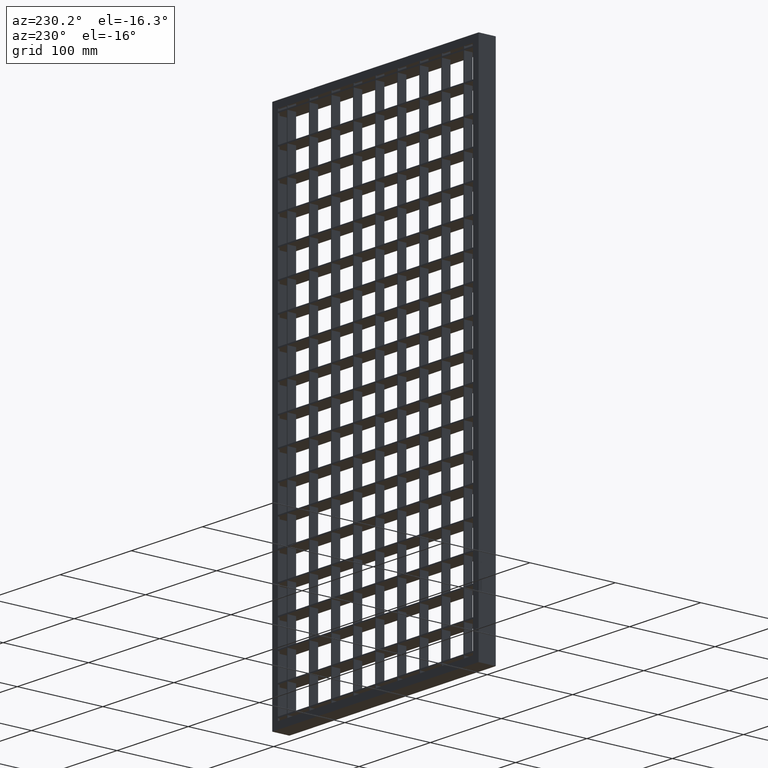
[diagram: clean part render]
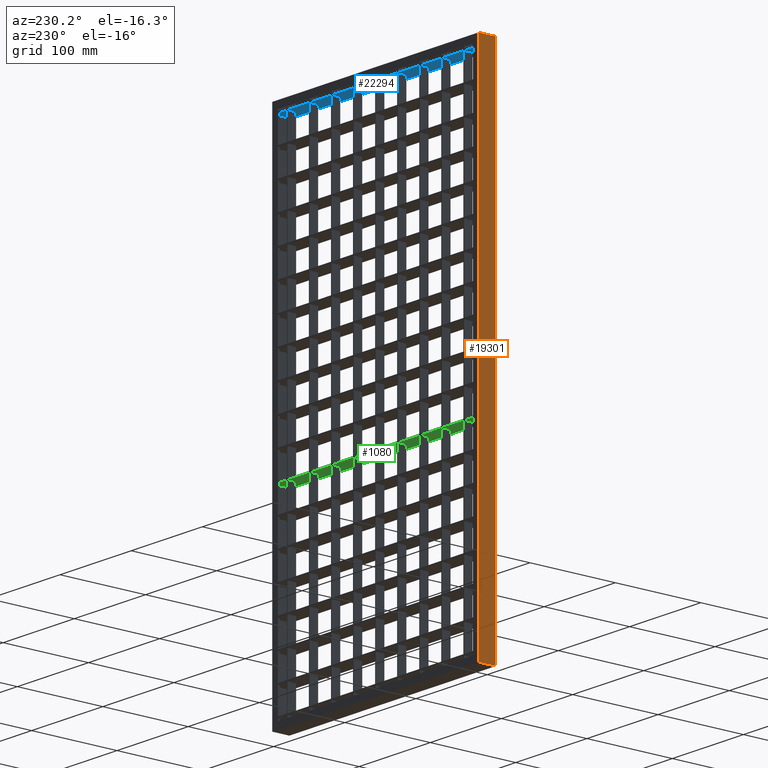
[diagram: same view with three faces highlighted in distinct colors, each labeled with its STEP entity id]
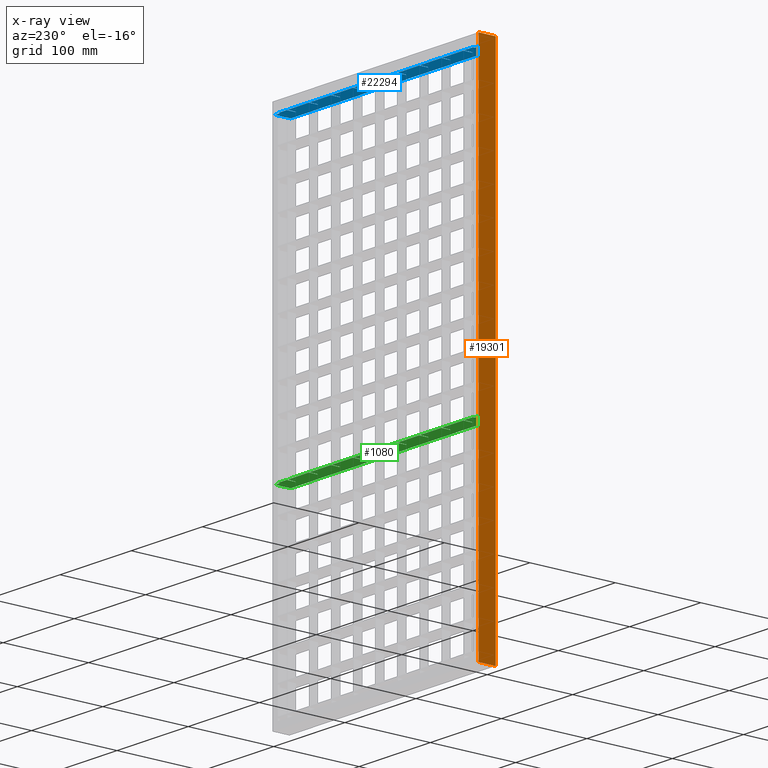
[diagram: x-ray of the same camera — body ghosted, the three highlighted faces saturated]
A machine part, auxiliary view with three faces highlighted in distinct colors.
The next image is the same camera in x-ray (body ghosted, the three faces saturated) — at least one of them is partly hidden behind the body in this view.
Their STEP definitions:

[orange] entity #19301 — the highlighted planar face has unit normal (-1, -0, 0).
#271 = VECTOR ( 'NONE', #11620, 1000.000000000000000 ) ;
#819 = ORIENTED_EDGE ( 'NONE', *, *, #8721, .T. ) ;
#1291 = CARTESIAN_POINT ( 'NONE',  ( -3.061616997868382300E-015, 10.00000000000000000, -633.0813184570758900 ) ) ;
#1912 = DIRECTION ( 'NONE',  ( 3.061616997868382600E-016, -1.000000000000000000, 0.0000000000000000000 ) ) ;
#2536 = VERTEX_POINT ( 'NONE', #11856 ) ;
#2788 = EDGE_CURVE ( 'NONE', #24667, #27620, #11308, .T. ) ;
#2845 = EDGE_LOOP ( 'NONE', ( #2885, #12816, #28418, #819 ) ) ;
#2885 = ORIENTED_EDGE ( 'NONE', *, *, #2788, .T. ) ;
#3832 = CARTESIAN_POINT ( 'NONE',  ( 3.061616997868383000E-015, -10.00000000000000000, -590.0000000000000000 ) ) ;
#4562 = CARTESIAN_POINT ( 'NONE',  ( 1.530808498934191500E-015, -10.00000000000000000, -1.665334536937734800E-013 ) ) ;
#4758 = CARTESIAN_POINT ( 'NONE',  ( -1.110223024625157600E-013, 10.00000000000000000, 1.089981928716811900E-013 ) ) ;
#4855 = CARTESIAN_POINT ( 'NONE',  ( -1.020538999289460800E-015, 3.333333333333333900, 0.0000000000000000000 ) ) ;
#5433 = B_SPLINE_CURVE_WITH_KNOTS ( 'NONE', 3,
 ( #4562, #15451, #4855, #4758 ),
 .UNSPECIFIED., .F., .F.,
 ( 4, 4 ),
 ( 0.0000000000000000000, 1.000000000000000000 ),
 .UNSPECIFIED. ) ;
#6564 = CARTESIAN_POINT ( 'NONE',  ( -3.061616997868382300E-015, 10.00000000000000000, -633.0813184570758900 ) ) ;
#6766 = PLANE ( 'NONE',  #21550 ) ;
#7939 = DIRECTION ( 'NONE',  ( -0.0000000000000000000, -0.0000000000000000000, 1.000000000000000000 ) ) ;
#8332 = CARTESIAN_POINT ( 'NONE',  ( 3.061616997868383000E-015, -10.00000000000000000, -633.0813184570758900 ) ) ;
#8721 = EDGE_CURVE ( 'NONE', #15656, #24667, #19824, .T. ) ;
#8939 = VECTOR ( 'NONE', #12390, 1000.000000000000000 ) ;
#9090 = CARTESIAN_POINT ( 'NONE',  ( -3.061616997868386200E-015, 10.00000000000001400, -590.0000000000000000 ) ) ;
#11308 = LINE ( 'NONE', #8332, #26262 ) ;
#11620 = DIRECTION ( 'NONE',  ( 3.061616997868382600E-016, -1.000000000000000000, 3.061616997868382600E-016 ) ) ;
#11856 = CARTESIAN_POINT ( 'NONE',  ( -1.110223024625157600E-013, 10.00000000000000000, 1.089981928716811900E-013 ) ) ;
#12390 = DIRECTION ( 'NONE',  ( -0.0000000000000000000, -0.0000000000000000000, 1.000000000000000000 ) ) ;
#12816 = ORIENTED_EDGE ( 'NONE', *, *, #25262, .T. ) ;
#15451 = CARTESIAN_POINT ( 'NONE',  ( 1.020538999289461500E-015, -3.333333333333333900, 0.0000000000000000000 ) ) ;
#15656 = VERTEX_POINT ( 'NONE', #18567 ) ;
#15788 = EDGE_CURVE ( 'NONE', #15656, #2536, #15968, .T. ) ;
#15968 = LINE ( 'NONE', #1291, #8939 ) ;
#18567 = CARTESIAN_POINT ( 'NONE',  ( -3.061616997868381900E-015, 10.00000000000000000, -590.0000000000000000 ) ) ;
#19301 = ADVANCED_FACE ( 'NONE', ( #26833 ), #6766, .T. ) ;
#19824 = LINE ( 'NONE', #9090, #271 ) ;
#20136 = DIRECTION ( 'NONE',  ( -1.000000000000000000, -3.061616997868382600E-016, 0.0000000000000000000 ) ) ;
#21550 = AXIS2_PLACEMENT_3D ( 'NONE', #6564, #20136, #1912 ) ;
#24371 = CARTESIAN_POINT ( 'NONE',  ( 1.530808498934191500E-015, -10.00000000000000000, -1.665334536937734800E-013 ) ) ;
#24667 = VERTEX_POINT ( 'NONE', #3832 ) ;
#25262 = EDGE_CURVE ( 'NONE', #27620, #2536, #5433, .T. ) ;
#26262 = VECTOR ( 'NONE', #7939, 1000.000000000000000 ) ;
#26833 = FACE_OUTER_BOUND ( 'NONE', #2845, .T. ) ;
#27620 = VERTEX_POINT ( 'NONE', #24371 ) ;
#28418 = ORIENTED_EDGE ( 'NONE', *, *, #15788, .F. ) ;

[blue] entity #22294 — the highlighted planar face has unit normal (0, 0, -1).
#96 = VERTEX_POINT ( 'NONE', #26644 ) ;
#139 = CARTESIAN_POINT ( 'NONE',  ( 206.5000000000000300, 10.00000000000000000, -12.25000000000042600 ) ) ;
#226 = LINE ( 'NONE', #10266, #25825 ) ;
#425 = EDGE_CURVE ( 'NONE', #26056, #19521, #16790, .T. ) ;
#430 = ORIENTED_EDGE ( 'NONE', *, *, #2437, .F. ) ;
#474 = CARTESIAN_POINT ( 'NONE',  ( 83.50000000000001400, 10.00000000000000000, -12.25000000000042600 ) ) ;
#577 = ORIENTED_EDGE ( 'NONE', *, *, #16531, .F. ) ;
#634 = EDGE_CURVE ( 'NONE', #12858, #7299, #27153, .T. ) ;
#851 = ORIENTED_EDGE ( 'NONE', *, *, #19906, .T. ) ;
#937 = CARTESIAN_POINT ( 'NONE',  ( 145.0000000000000000, 8.000000000000001800, -12.25000000000037100 ) ) ;
#959 = ORIENTED_EDGE ( 'NONE', *, *, #23688, .F. ) ;
#1035 = LINE ( 'NONE', #20708, #15929 ) ;
#1141 = VERTEX_POINT ( 'NONE', #11451 ) ;
#1162 = LINE ( 'NONE', #19222, #16742 ) ;
#1179 = EDGE_CURVE ( 'NONE', #26604, #3906, #12828, .T. ) ;
#1557 = ORIENTED_EDGE ( 'NONE', *, *, #14535, .F. ) ;
#1642 = LINE ( 'NONE', #6258, #5212 ) ;
#1649 = EDGE_CURVE ( 'NONE', #8204, #16130, #13519, .T. ) ;
#1713 = ORIENTED_EDGE ( 'NONE', *, *, #2353, .F. ) ;
#1758 = VERTEX_POINT ( 'NONE', #12872 ) ;
#1822 = DIRECTION ( 'NONE',  ( -1.000000000000000000, -3.061616997868382600E-016, 0.0000000000000000000 ) ) ;
#1855 = VERTEX_POINT ( 'NONE', #3584 ) ;
#1867 = CARTESIAN_POINT ( 'NONE',  ( 113.5000000000000100, -5.233672318667803300E-016, -12.25000000000042600 ) ) ;
#1962 = CARTESIAN_POINT ( 'NONE',  ( 238.5000000000000000, -5.233672318667803300E-016, -12.25000000000042600 ) ) ;
#2016 = VERTEX_POINT ( 'NONE', #15439 ) ;
#2074 = EDGE_CURVE ( 'NONE', #4288, #1141, #4980, .T. ) ;
#2198 = LINE ( 'NONE', #16929, #11393 ) ;
#2219 = LINE ( 'NONE', #22449, #21729 ) ;
#2293 = ORIENTED_EDGE ( 'NONE', *, *, #25041, .T. ) ;
#2353 = EDGE_CURVE ( 'NONE', #27274, #22809, #22703, .T. ) ;
#2395 = CARTESIAN_POINT ( 'NONE',  ( 237.5000000000000000, 10.00000000000000000, -12.25000000000042600 ) ) ;
#2405 = CARTESIAN_POINT ( 'NONE',  ( 7.999999999999996400, 8.000000000000001800, -12.25000000000042600 ) ) ;
#2437 = EDGE_CURVE ( 'NONE', #2016, #28345, #29180, .T. ) ;
#2467 = EDGE_CURVE ( 'NONE', #26604, #7299, #1035, .T. ) ;
#2798 = ORIENTED_EDGE ( 'NONE', *, *, #28187, .T. ) ;
#3042 = VERTEX_POINT ( 'NONE', #9206 ) ;
#3052 = DIRECTION ( 'NONE',  ( 0.0000000000000000000, -1.000000000000000000, 0.0000000000000000000 ) ) ;
#3144 = CARTESIAN_POINT ( 'NONE',  ( 83.50000000000001400, -9.999999999999909400, -12.25000000000037100 ) ) ;
#3186 = LINE ( 'NONE', #12969, #16954 ) ;
#3349 = ORIENTED_EDGE ( 'NONE', *, *, #19125, .F. ) ;
#3503 = CARTESIAN_POINT ( 'NONE',  ( 238.5000000000000000, 10.00000000000000000, -12.25000000000042600 ) ) ;
#3564 = LINE ( 'NONE', #13526, #18463 ) ;
#3584 = CARTESIAN_POINT ( 'NONE',  ( 144.5000000000000300, -5.233672318667803300E-016, -12.25000000000042600 ) ) ;
#3731 = VECTOR ( 'NONE', #14613, 1000.000000000000000 ) ;
#3906 = VERTEX_POINT ( 'NONE', #10093 ) ;
#4193 = ORIENTED_EDGE ( 'NONE', *, *, #29380, .F. ) ;
#4194 = ORIENTED_EDGE ( 'NONE', *, *, #634, .T. ) ;
#4225 = PLANE ( 'NONE',  #18010 ) ;
#4233 = LINE ( 'NONE', #6419, #14837 ) ;
#4288 = VERTEX_POINT ( 'NONE', #139 ) ;
#4436 = EDGE_CURVE ( 'NONE', #7454, #14102, #226, .T. ) ;
#4509 = VECTOR ( 'NONE', #27155, 1000.000000000000000 ) ;
#4728 = LINE ( 'NONE', #6227, #26050 ) ;
#4771 = CARTESIAN_POINT ( 'NONE',  ( 282.0000000000000000, 10.00000000000000200, -12.25000000000042600 ) ) ;
#4842 = DIRECTION ( 'NONE',  ( 0.0000000000000000000, -1.000000000000000000, 0.0000000000000000000 ) ) ;
#4917 = VERTEX_POINT ( 'NONE', #15965 ) ;
#4980 = LINE ( 'NONE', #22604, #21293 ) ;
#5065 = CARTESIAN_POINT ( 'NONE',  ( 175.5000000000000600, 10.00000000000000000, -12.25000000000042600 ) ) ;
#5212 = VECTOR ( 'NONE', #17660, 1000.000000000000000 ) ;
#5270 = EDGE_CURVE ( 'NONE', #25661, #26056, #3186, .T. ) ;
#5329 = LINE ( 'NONE', #13809, #22707 ) ;
#5353 = CARTESIAN_POINT ( 'NONE',  ( 269.5000000000000000, 10.00000000000000000, -12.25000000000042600 ) ) ;
#5545 = DIRECTION ( 'NONE',  ( 0.0000000000000000000, 1.000000000000000000, 0.0000000000000000000 ) ) ;
#5627 = VERTEX_POINT ( 'NONE', #28222 ) ;
#5658 = EDGE_CURVE ( 'NONE', #7356, #5627, #12213, .T. ) ;
#5675 = EDGE_CURVE ( 'NONE', #26020, #29461, #27221, .T. ) ;
#5700 = EDGE_CURVE ( 'NONE', #21888, #13292, #6213, .T. ) ;
#5703 = DIRECTION ( 'NONE',  ( 0.0000000000000000000, 1.000000000000000000, 0.0000000000000000000 ) ) ;
#5802 = CARTESIAN_POINT ( 'NONE',  ( 207.5000000000000300, -9.999999999999909400, -12.25000000000037100 ) ) ;
#5811 = CARTESIAN_POINT ( 'NONE',  ( 308.0561711201315800, -3.989863994746656300E-014, -12.25000000000037100 ) ) ;
#5936 = LINE ( 'NONE', #13189, #4509 ) ;
#5995 = CARTESIAN_POINT ( 'NONE',  ( 2.000000000000003600, 8.000000000000001800, -12.25000000000042600 ) ) ;
#6061 = LINE ( 'NONE', #10687, #11698 ) ;
#6077 = CARTESIAN_POINT ( 'NONE',  ( 7.999999999999996400, 10.00000000000000200, -12.25000000000031600 ) ) ;
#6213 = LINE ( 'NONE', #21081, #8374 ) ;
#6227 = CARTESIAN_POINT ( 'NONE',  ( 308.0561711201315800, -9.999999999999909400, -12.25000000000037100 ) ) ;
#6256 = LINE ( 'NONE', #25705, #28018 ) ;
#6258 = CARTESIAN_POINT ( 'NONE',  ( 237.5000000000000000, -9.999999999999909400, -12.25000000000037100 ) ) ;
#6280 = LINE ( 'NONE', #14804, #17599 ) ;
#6371 = VECTOR ( 'NONE', #15841, 1000.000000000000000 ) ;
#6419 = CARTESIAN_POINT ( 'NONE',  ( 308.0561711201315800, 10.00000000000009100, -12.25000000000037100 ) ) ;
#6443 = CARTESIAN_POINT ( 'NONE',  ( 308.0561711201315800, 10.00000000000009100, -12.25000000000037100 ) ) ;
#6468 = CARTESIAN_POINT ( 'NONE',  ( 114.5000000000000100, 10.00000000000000000, -12.25000000000042600 ) ) ;
#6776 = LINE ( 'NONE', #5802, #23824 ) ;
#7023 = CARTESIAN_POINT ( 'NONE',  ( 268.5000000000000000, -9.999999999999909400, -12.25000000000037100 ) ) ;
#7081 = CARTESIAN_POINT ( 'NONE',  ( 308.0561711201315800, -2.081668171172168500E-014, -12.25000000000037100 ) ) ;
#7116 = ORIENTED_EDGE ( 'NONE', *, *, #5675, .F. ) ;
#7271 = CARTESIAN_POINT ( 'NONE',  ( 308.0561711201315800, -1.214306433183765000E-014, -12.25000000000037100 ) ) ;
#7279 = VERTEX_POINT ( 'NONE', #6077 ) ;
#7299 = VERTEX_POINT ( 'NONE', #3503 ) ;
#7356 = VERTEX_POINT ( 'NONE', #19375 ) ;
#7454 = VERTEX_POINT ( 'NONE', #6468 ) ;
#7471 = VECTOR ( 'NONE', #27597, 1000.000000000000000 ) ;
#7559 = VERTEX_POINT ( 'NONE', #4771 ) ;
#7586 = VECTOR ( 'NONE', #10018, 1000.000000000000000 ) ;
#7798 = VECTOR ( 'NONE', #26351, 1000.000000000000000 ) ;
#7896 = VECTOR ( 'NONE', #9500, 1000.000000000000000 ) ;
#7995 = EDGE_CURVE ( 'NONE', #3042, #11880, #19816, .T. ) ;
#8063 = LINE ( 'NONE', #3144, #18673 ) ;
#8127 = VECTOR ( 'NONE', #16942, 1000.000000000000000 ) ;
#8204 = VERTEX_POINT ( 'NONE', #23179 ) ;
#8235 = ORIENTED_EDGE ( 'NONE', *, *, #12525, .F. ) ;
#8372 = ORIENTED_EDGE ( 'NONE', *, *, #2467, .F. ) ;
#8374 = VECTOR ( 'NONE', #5545, 1000.000000000000000 ) ;
#8681 = CARTESIAN_POINT ( 'NONE',  ( 20.50000000000001800, -5.233672318667803300E-016, -12.25000000000042600 ) ) ;
#8795 = LINE ( 'NONE', #12853, #10188 ) ;
#8907 = DIRECTION ( 'NONE',  ( -1.000000000000000000, 0.0000000000000000000, 0.0000000000000000000 ) ) ;
#9141 = CARTESIAN_POINT ( 'NONE',  ( 20.49999999999996400, 10.00000000000000200, -12.25000000000037100 ) ) ;
#9169 = EDGE_CURVE ( 'NONE', #4917, #26020, #17650, .T. ) ;
#9206 = CARTESIAN_POINT ( 'NONE',  ( 82.50000000000001400, 10.00000000000002100, -12.25000000000037100 ) ) ;
#9328 = VERTEX_POINT ( 'NONE', #18162 ) ;
#9355 = ORIENTED_EDGE ( 'NONE', *, *, #10391, .T. ) ;
#9390 = CARTESIAN_POINT ( 'NONE',  ( 144.5000000000000300, -9.999999999999909400, -12.25000000000037100 ) ) ;
#9500 = DIRECTION ( 'NONE',  ( 0.0000000000000000000, -1.000000000000000000, 0.0000000000000000000 ) ) ;
#9598 = VECTOR ( 'NONE', #23969, 1000.000000000000000 ) ;
#9766 = VERTEX_POINT ( 'NONE', #11448 ) ;
#9926 = ORIENTED_EDGE ( 'NONE', *, *, #10044, .T. ) ;
#10018 = DIRECTION ( 'NONE',  ( 0.0000000000000000000, 1.000000000000000000, 0.0000000000000000000 ) ) ;
#10029 = ORIENTED_EDGE ( 'NONE', *, *, #16316, .F. ) ;
#10044 = EDGE_CURVE ( 'NONE', #1758, #10784, #6776, .T. ) ;
#10093 = CARTESIAN_POINT ( 'NONE',  ( 268.5000000000000000, 0.0000000000000000000, -12.25000000000037100 ) ) ;
#10188 = VECTOR ( 'NONE', #12946, 1000.000000000000000 ) ;
#10266 = CARTESIAN_POINT ( 'NONE',  ( 114.5000000000000100, -9.999999999999909400, -12.25000000000037100 ) ) ;
#10334 = VECTOR ( 'NONE', #17798, 1000.000000000000000 ) ;
#10391 = EDGE_CURVE ( 'NONE', #7559, #9328, #2198, .T. ) ;
#10563 = DIRECTION ( 'NONE',  ( 1.000000000000000000, 0.0000000000000000000, 0.0000000000000000000 ) ) ;
#10687 = CARTESIAN_POINT ( 'NONE',  ( 308.0561711201315800, 10.00000000000009100, -12.25000000000037100 ) ) ;
#10779 = VECTOR ( 'NONE', #13251, 1000.000000000000000 ) ;
#10784 = VERTEX_POINT ( 'NONE', #16202 ) ;
#10899 = CARTESIAN_POINT ( 'NONE',  ( 308.0561711201315800, 10.00000000000009100, -12.25000000000037100 ) ) ;
#10989 = DIRECTION ( 'NONE',  ( -1.000000000000000000, -3.061616997868382600E-016, 0.0000000000000000000 ) ) ;
#10995 = EDGE_CURVE ( 'NONE', #9328, #22809, #22356, .T. ) ;
#11210 = DIRECTION ( 'NONE',  ( 0.0000000000000000000, -1.000000000000000000, 0.0000000000000000000 ) ) ;
#11257 = DIRECTION ( 'NONE',  ( 0.0000000000000000000, 0.0000000000000000000, -1.000000000000000000 ) ) ;
#11393 = VECTOR ( 'NONE', #23912, 1000.000000000000000 ) ;
#11448 = CARTESIAN_POINT ( 'NONE',  ( 176.5000000000000600, -5.233672318667803300E-016, -12.25000000000042600 ) ) ;
#11451 = CARTESIAN_POINT ( 'NONE',  ( 206.5000000000000300, 0.0000000000000000000, -12.25000000000037100 ) ) ;
#11536 = ORIENTED_EDGE ( 'NONE', *, *, #18353, .F. ) ;
#11552 = ORIENTED_EDGE ( 'NONE', *, *, #1649, .T. ) ;
#11698 = VECTOR ( 'NONE', #17911, 1000.000000000000000 ) ;
#11772 = DIRECTION ( 'NONE',  ( -1.000000000000000000, -3.061616997868382600E-016, 0.0000000000000000000 ) ) ;
#11853 = VERTEX_POINT ( 'NONE', #24716 ) ;
#11861 = ORIENTED_EDGE ( 'NONE', *, *, #23516, .T. ) ;
#11880 = VERTEX_POINT ( 'NONE', #17868 ) ;
#11950 = CARTESIAN_POINT ( 'NONE',  ( 308.0561711201315800, 6.938893903907228400E-014, -12.25000000000037100 ) ) ;
#12000 = LINE ( 'NONE', #24054, #14137 ) ;
#12151 = CARTESIAN_POINT ( 'NONE',  ( 308.0561711201315800, 8.847089727481716200E-014, -12.25000000000037100 ) ) ;
#12213 = LINE ( 'NONE', #11950, #3731 ) ;
#12312 = DIRECTION ( 'NONE',  ( -1.000000000000000000, -3.061616997868382600E-016, 0.0000000000000000000 ) ) ;
#12328 = ORIENTED_EDGE ( 'NONE', *, *, #9169, .F. ) ;
#12434 = DIRECTION ( 'NONE',  ( -1.000000000000000000, -3.061616997868382600E-016, 0.0000000000000000000 ) ) ;
#12504 = VERTEX_POINT ( 'NONE', #13837 ) ;
#12525 = EDGE_CURVE ( 'NONE', #19521, #7356, #8063, .T. ) ;
#12698 = EDGE_CURVE ( 'NONE', #5627, #3042, #6280, .T. ) ;
#12741 = VECTOR ( 'NONE', #11210, 1000.000000000000000 ) ;
#12820 = DIRECTION ( 'NONE',  ( -1.000000000000000000, -3.061616997868382600E-016, 0.0000000000000000000 ) ) ;
#12828 = LINE ( 'NONE', #7023, #7896 ) ;
#12853 = CARTESIAN_POINT ( 'NONE',  ( 20.50000000000001800, -9.999999999999909400, -12.25000000000037100 ) ) ;
#12858 = VERTEX_POINT ( 'NONE', #1962 ) ;
#12872 = CARTESIAN_POINT ( 'NONE',  ( 207.5000000000000300, -5.233672318667803300E-016, -12.25000000000042600 ) ) ;
#12894 = CARTESIAN_POINT ( 'NONE',  ( 21.50000000000001800, -9.999999999999909400, -12.25000000000037100 ) ) ;
#12946 = DIRECTION ( 'NONE',  ( 0.0000000000000000000, 1.000000000000000000, 0.0000000000000000000 ) ) ;
#12969 = CARTESIAN_POINT ( 'NONE',  ( 113.5000000000000100, -9.999999999999909400, -12.25000000000037100 ) ) ;
#13092 = DIRECTION ( 'NONE',  ( 0.0000000000000000000, -1.000000000000000000, 0.0000000000000000000 ) ) ;
#13118 = CARTESIAN_POINT ( 'NONE',  ( 308.0561711201315800, 10.00000000000009100, -12.25000000000037100 ) ) ;
#13189 = CARTESIAN_POINT ( 'NONE',  ( 308.0561711201315800, 10.00000000000009100, -12.25000000000037100 ) ) ;
#13251 = DIRECTION ( 'NONE',  ( -1.000000000000000000, -3.061616997868382600E-016, 0.0000000000000000000 ) ) ;
#13280 = CARTESIAN_POINT ( 'NONE',  ( 175.5000000000000600, -9.999999999999909400, -12.25000000000037100 ) ) ;
#13292 = VERTEX_POINT ( 'NONE', #17254 ) ;
#13519 = LINE ( 'NONE', #5995, #10334 ) ;
#13526 = CARTESIAN_POINT ( 'NONE',  ( 2.000000000000003600, -10.00000000000000000, -12.25000000000042600 ) ) ;
#13809 = CARTESIAN_POINT ( 'NONE',  ( 269.5000000000000000, -9.999999999999909400, -12.25000000000037100 ) ) ;
#13837 = CARTESIAN_POINT ( 'NONE',  ( 237.5000000000000000, 0.0000000000000000000, -12.25000000000037100 ) ) ;
#13907 = DIRECTION ( 'NONE',  ( 0.0000000000000000000, 1.000000000000000000, 0.0000000000000000000 ) ) ;
#14102 = VERTEX_POINT ( 'NONE', #25057 ) ;
#14116 = VECTOR ( 'NONE', #19178, 1000.000000000000000 ) ;
#14137 = VECTOR ( 'NONE', #12312, 1000.000000000000000 ) ;
#14416 = ORIENTED_EDGE ( 'NONE', *, *, #425, .F. ) ;
#14475 = VERTEX_POINT ( 'NONE', #19780 ) ;
#14535 = EDGE_CURVE ( 'NONE', #19517, #2016, #2219, .T. ) ;
#14613 = DIRECTION ( 'NONE',  ( -1.000000000000000000, -3.061616997868382600E-016, 0.0000000000000000000 ) ) ;
#14778 = EDGE_CURVE ( 'NONE', #16130, #7279, #16012, .T. ) ;
#14804 = CARTESIAN_POINT ( 'NONE',  ( 82.50000000000001400, -9.999999999999909400, -12.25000000000037100 ) ) ;
#14837 = VECTOR ( 'NONE', #17428, 1000.000000000000000 ) ;
#15339 = ORIENTED_EDGE ( 'NONE', *, *, #14778, .T. ) ;
#15439 = CARTESIAN_POINT ( 'NONE',  ( 145.5000000000000300, 10.00000000000000000, -12.25000000000042600 ) ) ;
#15519 = VERTEX_POINT ( 'NONE', #27375 ) ;
#15534 = DIRECTION ( 'NONE',  ( -1.000000000000000000, -3.061616997868382600E-016, 0.0000000000000000000 ) ) ;
#15841 = DIRECTION ( 'NONE',  ( 0.0000000000000000000, 1.000000000000000000, 0.0000000000000000000 ) ) ;
#15929 = VECTOR ( 'NONE', #11772, 1000.000000000000000 ) ;
#15965 = CARTESIAN_POINT ( 'NONE',  ( 21.50000000000001800, 10.00000000000000000, -12.25000000000042600 ) ) ;
#16012 = LINE ( 'NONE', #2405, #28183 ) ;
#16130 = VERTEX_POINT ( 'NONE', #20706 ) ;
#16186 = ORIENTED_EDGE ( 'NONE', *, *, #7995, .F. ) ;
#16193 = VERTEX_POINT ( 'NONE', #9141 ) ;
#16202 = CARTESIAN_POINT ( 'NONE',  ( 207.5000000000000300, 10.00000000000000000, -12.25000000000042600 ) ) ;
#16316 = EDGE_CURVE ( 'NONE', #13292, #4917, #20219, .T. ) ;
#16525 = DIRECTION ( 'NONE',  ( -1.000000000000000000, -3.061616997868382600E-016, 0.0000000000000000000 ) ) ;
#16531 = EDGE_CURVE ( 'NONE', #14475, #7454, #4233, .T. ) ;
#16534 = DIRECTION ( 'NONE',  ( 0.0000000000000000000, 1.000000000000000000, 0.0000000000000000000 ) ) ;
#16683 = CARTESIAN_POINT ( 'NONE',  ( 113.5000000000000100, 10.00000000000003200, -12.25000000000037100 ) ) ;
#16742 = VECTOR ( 'NONE', #12434, 1000.000000000000000 ) ;
#16790 = LINE ( 'NONE', #6443, #10779 ) ;
#16856 = CARTESIAN_POINT ( 'NONE',  ( 308.0561711201315800, 10.00000000000009100, -12.25000000000037100 ) ) ;
#16929 = CARTESIAN_POINT ( 'NONE',  ( 282.0000000000000000, 8.000000000000001800, -12.25000000000042600 ) ) ;
#16942 = DIRECTION ( 'NONE',  ( 1.000000000000000000, -3.061616997868382600E-016, 0.0000000000000000000 ) ) ;
#16954 = VECTOR ( 'NONE', #17756, 1000.000000000000000 ) ;
#17003 = DIRECTION ( 'NONE',  ( 0.0000000000000000000, 1.000000000000000000, 0.0000000000000000000 ) ) ;
#17009 = VECTOR ( 'NONE', #10563, 1000.000000000000000 ) ;
#17137 = EDGE_CURVE ( 'NONE', #7559, #28554, #22646, .T. ) ;
#17254 = CARTESIAN_POINT ( 'NONE',  ( 51.49999999999999300, 10.00000000000001200, -12.25000000000037100 ) ) ;
#17428 = DIRECTION ( 'NONE',  ( -1.000000000000000000, -3.061616997868382600E-016, 0.0000000000000000000 ) ) ;
#17599 = VECTOR ( 'NONE', #17003, 1000.000000000000000 ) ;
#17650 = LINE ( 'NONE', #12894, #22260 ) ;
#17660 = DIRECTION ( 'NONE',  ( 0.0000000000000000000, -1.000000000000000000, 0.0000000000000000000 ) ) ;
#17756 = DIRECTION ( 'NONE',  ( 0.0000000000000000000, 1.000000000000000000, 0.0000000000000000000 ) ) ;
#17798 = DIRECTION ( 'NONE',  ( 1.000000000000000000, 0.0000000000000000000, 0.0000000000000000000 ) ) ;
#17829 = CARTESIAN_POINT ( 'NONE',  ( 2.000000000000003600, -10.00000000000000000, -12.25000000000042600 ) ) ;
#17868 = CARTESIAN_POINT ( 'NONE',  ( 52.50000000000002100, 10.00000000000000000, -12.25000000000042600 ) ) ;
#17878 = DIRECTION ( 'NONE',  ( 0.0000000000000000000, -1.000000000000000000, 0.0000000000000000000 ) ) ;
#17911 = DIRECTION ( 'NONE',  ( -1.000000000000000000, -3.061616997868382600E-016, 0.0000000000000000000 ) ) ;
#18010 = AXIS2_PLACEMENT_3D ( 'NONE', #22480, #11257, #8907 ) ;
#18066 = EDGE_CURVE ( 'NONE', #9766, #96, #6256, .T. ) ;
#18082 = VECTOR ( 'NONE', #15534, 1000.000000000000000 ) ;
#18162 = CARTESIAN_POINT ( 'NONE',  ( 282.0000000000000000, 8.000000000000001800, -12.25000000000042600 ) ) ;
#18353 = EDGE_CURVE ( 'NONE', #29461, #16193, #8795, .T. ) ;
#18411 = EDGE_LOOP ( 'NONE', ( #21742, #11861, #20367, #9355, #23102, #1713, #851, #22024, #11552, #15339, #24931, #11536, #7116, #12328, #10029, #24967, #3349, #24508, #16186, #25084, #23039, #8235, #14416, #27815, #24247, #22446, #577, #19657, #959, #430, #1557, #24052, #23344, #21749, #4193, #23919, #2798, #9926, #21449, #2293, #28010, #4194, #8372, #24008 ) ) ;
#18463 = VECTOR ( 'NONE', #29118, 1000.000000000000000 ) ;
#18497 = CARTESIAN_POINT ( 'NONE',  ( 21.50000000000001800, -2.172055320799417500E-016, -12.25000000000042600 ) ) ;
#18673 = VECTOR ( 'NONE', #3052, 1000.000000000000000 ) ;
#18826 = VECTOR ( 'NONE', #25158, 1000.000000000000000 ) ;
#18945 = DIRECTION ( 'NONE',  ( 0.0000000000000000000, 1.000000000000000000, 0.0000000000000000000 ) ) ;
#19125 = EDGE_CURVE ( 'NONE', #21807, #21888, #25027, .T. ) ;
#19131 = LINE ( 'NONE', #7081, #23747 ) ;
#19178 = DIRECTION ( 'NONE',  ( -1.000000000000000000, -3.061616997868382600E-016, 0.0000000000000000000 ) ) ;
#19182 = CARTESIAN_POINT ( 'NONE',  ( 308.0561711201315800, 7.806255641895631900E-014, -12.25000000000037100 ) ) ;
#19222 = CARTESIAN_POINT ( 'NONE',  ( 308.0561711201315800, 5.898059818321144100E-014, -12.25000000000037100 ) ) ;
#19375 = CARTESIAN_POINT ( 'NONE',  ( 83.50000000000001400, -2.172055320799417500E-016, -12.25000000000042600 ) ) ;
#19513 = VECTOR ( 'NONE', #16525, 1000.000000000000000 ) ;
#19517 = VERTEX_POINT ( 'NONE', #5065 ) ;
#19521 = VERTEX_POINT ( 'NONE', #474 ) ;
#19657 = ORIENTED_EDGE ( 'NONE', *, *, #23511, .F. ) ;
#19780 = CARTESIAN_POINT ( 'NONE',  ( 144.5000000000000300, 10.00000000000004100, -12.25000000000037100 ) ) ;
#19816 = LINE ( 'NONE', #10899, #18082 ) ;
#19906 = EDGE_CURVE ( 'NONE', #27274, #23267, #4728, .T. ) ;
#20219 = LINE ( 'NONE', #23197, #19513 ) ;
#20221 = EDGE_CURVE ( 'NONE', #14102, #25661, #1162, .T. ) ;
#20367 = ORIENTED_EDGE ( 'NONE', *, *, #17137, .F. ) ;
#20419 = CARTESIAN_POINT ( 'NONE',  ( 288.0000000000000000, -9.999999999999909400, -12.25000000000037100 ) ) ;
#20526 = VERTEX_POINT ( 'NONE', #2395 ) ;
#20706 = CARTESIAN_POINT ( 'NONE',  ( 7.999999999999996400, 8.000000000000001800, -12.25000000000042600 ) ) ;
#20708 = CARTESIAN_POINT ( 'NONE',  ( 308.0561711201315800, 10.00000000000009100, -12.25000000000037100 ) ) ;
#21081 = CARTESIAN_POINT ( 'NONE',  ( 51.50000000000004300, -9.999999999999909400, -12.25000000000037100 ) ) ;
#21106 = VECTOR ( 'NONE', #27921, 1000.000000000000000 ) ;
#21160 = CARTESIAN_POINT ( 'NONE',  ( 288.0000000000000000, -10.00000000000000000, -12.25000000000031600 ) ) ;
#21293 = VECTOR ( 'NONE', #4842, 1000.000000000000000 ) ;
#21449 = ORIENTED_EDGE ( 'NONE', *, *, #28103, .F. ) ;
#21729 = VECTOR ( 'NONE', #1822, 1000.000000000000000 ) ;
#21742 = ORIENTED_EDGE ( 'NONE', *, *, #24166, .T. ) ;
#21749 = ORIENTED_EDGE ( 'NONE', *, *, #18066, .T. ) ;
#21807 = VERTEX_POINT ( 'NONE', #23278 ) ;
#21832 = CARTESIAN_POINT ( 'NONE',  ( 308.0561711201315800, -3.122502256758252800E-014, -12.25000000000037100 ) ) ;
#21888 = VERTEX_POINT ( 'NONE', #22994 ) ;
#22024 = ORIENTED_EDGE ( 'NONE', *, *, #23286, .T. ) ;
#22260 = VECTOR ( 'NONE', #13092, 1000.000000000000000 ) ;
#22294 = ADVANCED_FACE ( 'NONE', ( #23096 ), #4225, .T. ) ;
#22325 = CARTESIAN_POINT ( 'NONE',  ( 145.5000000000000300, -2.172055320799417500E-016, -12.25000000000042600 ) ) ;
#22356 = LINE ( 'NONE', #937, #17009 ) ;
#22439 = EDGE_CURVE ( 'NONE', #11880, #21807, #25980, .T. ) ;
#22446 = ORIENTED_EDGE ( 'NONE', *, *, #4436, .F. ) ;
#22449 = CARTESIAN_POINT ( 'NONE',  ( 308.0561711201315800, 10.00000000000009100, -12.25000000000037100 ) ) ;
#22480 = CARTESIAN_POINT ( 'NONE',  ( 308.0561711201315800, -9.999999999999909400, -12.25000000000037100 ) ) ;
#22604 = CARTESIAN_POINT ( 'NONE',  ( 206.5000000000000300, -9.999999999999909400, -12.25000000000037100 ) ) ;
#22646 = LINE ( 'NONE', #13118, #29114 ) ;
#22699 = LINE ( 'NONE', #5811, #9598 ) ;
#22703 = LINE ( 'NONE', #20419, #6371 ) ;
#22707 = VECTOR ( 'NONE', #13907, 1000.000000000000000 ) ;
#22809 = VERTEX_POINT ( 'NONE', #29431 ) ;
#22865 = CARTESIAN_POINT ( 'NONE',  ( 52.50000000000005000, -9.999999999999909400, -12.25000000000037100 ) ) ;
#22994 = CARTESIAN_POINT ( 'NONE',  ( 51.50000000000002100, -5.233672318667803300E-016, -12.25000000000042600 ) ) ;
#23039 = ORIENTED_EDGE ( 'NONE', *, *, #5658, .F. ) ;
#23096 = FACE_OUTER_BOUND ( 'NONE', #18411, .T. ) ;
#23102 = ORIENTED_EDGE ( 'NONE', *, *, #10995, .T. ) ;
#23179 = CARTESIAN_POINT ( 'NONE',  ( 2.000000000000003600, 8.000000000000001800, -12.25000000000042600 ) ) ;
#23197 = CARTESIAN_POINT ( 'NONE',  ( 308.0561711201315800, 10.00000000000009100, -12.25000000000037100 ) ) ;
#23264 = EDGE_CURVE ( 'NONE', #16193, #7279, #6061, .T. ) ;
#23267 = VERTEX_POINT ( 'NONE', #17829 ) ;
#23278 = CARTESIAN_POINT ( 'NONE',  ( 52.50000000000002100, -2.172055320799417500E-016, -12.25000000000042600 ) ) ;
#23286 = EDGE_CURVE ( 'NONE', #23267, #8204, #3564, .T. ) ;
#23344 = ORIENTED_EDGE ( 'NONE', *, *, #27558, .T. ) ;
#23511 = EDGE_CURVE ( 'NONE', #1855, #14475, #28825, .T. ) ;
#23516 = EDGE_CURVE ( 'NONE', #15519, #28554, #5329, .T. ) ;
#23566 = DIRECTION ( 'NONE',  ( 0.0000000000000000000, -1.000000000000000000, 0.0000000000000000000 ) ) ;
#23688 = EDGE_CURVE ( 'NONE', #28345, #1855, #12000, .T. ) ;
#23740 = DIRECTION ( 'NONE',  ( -1.000000000000000000, -3.061616997868382600E-016, 0.0000000000000000000 ) ) ;
#23747 = VECTOR ( 'NONE', #25224, 1000.000000000000000 ) ;
#23824 = VECTOR ( 'NONE', #5703, 1000.000000000000000 ) ;
#23912 = DIRECTION ( 'NONE',  ( 0.0000000000000000000, -1.000000000000000000, 0.0000000000000000000 ) ) ;
#23919 = ORIENTED_EDGE ( 'NONE', *, *, #2074, .T. ) ;
#23969 = DIRECTION ( 'NONE',  ( 1.000000000000000000, -3.061616997868382600E-016, 0.0000000000000000000 ) ) ;
#24008 = ORIENTED_EDGE ( 'NONE', *, *, #1179, .T. ) ;
#24052 = ORIENTED_EDGE ( 'NONE', *, *, #29470, .T. ) ;
#24054 = CARTESIAN_POINT ( 'NONE',  ( 308.0561711201315800, 5.030698080332740600E-014, -12.25000000000037100 ) ) ;
#24065 = EDGE_CURVE ( 'NONE', #12504, #12858, #19131, .T. ) ;
#24107 = LINE ( 'NONE', #21832, #7798 ) ;
#24166 = EDGE_CURVE ( 'NONE', #3906, #15519, #26250, .T. ) ;
#24247 = ORIENTED_EDGE ( 'NONE', *, *, #20221, .F. ) ;
#24508 = ORIENTED_EDGE ( 'NONE', *, *, #22439, .F. ) ;
#24630 = CARTESIAN_POINT ( 'NONE',  ( 145.5000000000000300, -9.999999999999909400, -12.25000000000037100 ) ) ;
#24716 = CARTESIAN_POINT ( 'NONE',  ( 175.5000000000000600, 0.0000000000000000000, -12.25000000000037100 ) ) ;
#24931 = ORIENTED_EDGE ( 'NONE', *, *, #23264, .F. ) ;
#24967 = ORIENTED_EDGE ( 'NONE', *, *, #5700, .F. ) ;
#25027 = LINE ( 'NONE', #19182, #25742 ) ;
#25041 = EDGE_CURVE ( 'NONE', #20526, #12504, #1642, .T. ) ;
#25057 = CARTESIAN_POINT ( 'NONE',  ( 114.5000000000000100, -2.172055320799417500E-016, -12.25000000000042600 ) ) ;
#25084 = ORIENTED_EDGE ( 'NONE', *, *, #12698, .F. ) ;
#25158 = DIRECTION ( 'NONE',  ( 0.0000000000000000000, -1.000000000000000000, 0.0000000000000000000 ) ) ;
#25224 = DIRECTION ( 'NONE',  ( 1.000000000000000000, -3.061616997868382600E-016, 0.0000000000000000000 ) ) ;
#25474 = LINE ( 'NONE', #13280, #26207 ) ;
#25621 = CARTESIAN_POINT ( 'NONE',  ( 268.5000000000000000, 10.00000000000000000, -12.25000000000042600 ) ) ;
#25661 = VERTEX_POINT ( 'NONE', #1867 ) ;
#25705 = CARTESIAN_POINT ( 'NONE',  ( 176.5000000000000600, -9.999999999999909400, -12.25000000000037100 ) ) ;
#25742 = VECTOR ( 'NONE', #23740, 1000.000000000000000 ) ;
#25825 = VECTOR ( 'NONE', #23566, 1000.000000000000000 ) ;
#25980 = LINE ( 'NONE', #22865, #18826 ) ;
#26020 = VERTEX_POINT ( 'NONE', #18497 ) ;
#26050 = VECTOR ( 'NONE', #10989, 1000.000000000000000 ) ;
#26056 = VERTEX_POINT ( 'NONE', #16683 ) ;
#26207 = VECTOR ( 'NONE', #17878, 1000.000000000000000 ) ;
#26250 = LINE ( 'NONE', #7271, #8127 ) ;
#26351 = DIRECTION ( 'NONE',  ( 1.000000000000000000, -3.061616997868382600E-016, 0.0000000000000000000 ) ) ;
#26604 = VERTEX_POINT ( 'NONE', #25621 ) ;
#26644 = CARTESIAN_POINT ( 'NONE',  ( 176.5000000000000600, 10.00000000000000000, -12.25000000000042600 ) ) ;
#26991 = LINE ( 'NONE', #16856, #14116 ) ;
#27147 = CARTESIAN_POINT ( 'NONE',  ( 238.5000000000000000, -9.999999999999909400, -12.25000000000037100 ) ) ;
#27153 = LINE ( 'NONE', #27147, #7586 ) ;
#27155 = DIRECTION ( 'NONE',  ( -1.000000000000000000, -3.061616997868382600E-016, 0.0000000000000000000 ) ) ;
#27221 = LINE ( 'NONE', #12151, #21106 ) ;
#27274 = VERTEX_POINT ( 'NONE', #21160 ) ;
#27375 = CARTESIAN_POINT ( 'NONE',  ( 269.5000000000000000, -5.233672318667803300E-016, -12.25000000000042600 ) ) ;
#27558 = EDGE_CURVE ( 'NONE', #11853, #9766, #22699, .T. ) ;
#27597 = DIRECTION ( 'NONE',  ( 0.0000000000000000000, 1.000000000000000000, 0.0000000000000000000 ) ) ;
#27815 = ORIENTED_EDGE ( 'NONE', *, *, #5270, .F. ) ;
#27921 = DIRECTION ( 'NONE',  ( -1.000000000000000000, -3.061616997868382600E-016, 0.0000000000000000000 ) ) ;
#28010 = ORIENTED_EDGE ( 'NONE', *, *, #24065, .T. ) ;
#28018 = VECTOR ( 'NONE', #16534, 1000.000000000000000 ) ;
#28103 = EDGE_CURVE ( 'NONE', #20526, #10784, #26991, .T. ) ;
#28183 = VECTOR ( 'NONE', #18945, 1000.000000000000000 ) ;
#28187 = EDGE_CURVE ( 'NONE', #1141, #1758, #24107, .T. ) ;
#28222 = CARTESIAN_POINT ( 'NONE',  ( 82.50000000000001400, -5.233672318667803300E-016, -12.25000000000042600 ) ) ;
#28345 = VERTEX_POINT ( 'NONE', #22325 ) ;
#28554 = VERTEX_POINT ( 'NONE', #5353 ) ;
#28825 = LINE ( 'NONE', #9390, #7471 ) ;
#29114 = VECTOR ( 'NONE', #12820, 1000.000000000000000 ) ;
#29118 = DIRECTION ( 'NONE',  ( 0.0000000000000000000, 1.000000000000000000, 0.0000000000000000000 ) ) ;
#29180 = LINE ( 'NONE', #24630, #12741 ) ;
#29380 = EDGE_CURVE ( 'NONE', #4288, #96, #5936, .T. ) ;
#29431 = CARTESIAN_POINT ( 'NONE',  ( 288.0000000000001100, 8.000000000000001800, -12.25000000000042600 ) ) ;
#29461 = VERTEX_POINT ( 'NONE', #8681 ) ;
#29470 = EDGE_CURVE ( 'NONE', #19517, #11853, #25474, .T. ) ;

[green] entity #1080 — the highlighted planar face has unit normal (0, 0, 1).
#119 = EDGE_CURVE ( 'NONE', #18749, #5788, #8351, .T. ) ;
#174 = ORIENTED_EDGE ( 'NONE', *, *, #25784, .F. ) ;
#222 = VECTOR ( 'NONE', #7239, 1000.000000000000000 ) ;
#288 = EDGE_CURVE ( 'NONE', #6249, #11506, #22140, .T. ) ;
#302 = CARTESIAN_POINT ( 'NONE',  ( 20.50000000000001800, 10.00000000000000200, -358.7499999999994300 ) ) ;
#356 = CARTESIAN_POINT ( 'NONE',  ( 268.5000000000000000, 10.00000000000000000, -358.7499999999994300 ) ) ;
#436 = VECTOR ( 'NONE', #7528, 1000.000000000000000 ) ;
#506 = CARTESIAN_POINT ( 'NONE',  ( 114.5000000000000100, 10.00000000000000000, -358.7499999999994300 ) ) ;
#512 = CARTESIAN_POINT ( 'NONE',  ( 269.5000000000000000, -9.999999999999909400, -358.7499999999994300 ) ) ;
#666 = DIRECTION ( 'NONE',  ( 0.0000000000000000000, -1.000000000000000000, 0.0000000000000000000 ) ) ;
#696 = EDGE_CURVE ( 'NONE', #17515, #27670, #23918, .T. ) ;
#735 = ORIENTED_EDGE ( 'NONE', *, *, #14601, .F. ) ;
#745 = CARTESIAN_POINT ( 'NONE',  ( 308.0561711201315200, 10.00000000000009100, -358.7499999999994300 ) ) ;
#935 = LINE ( 'NONE', #17531, #24396 ) ;
#987 = ORIENTED_EDGE ( 'NONE', *, *, #25975, .T. ) ;
#1016 = VERTEX_POINT ( 'NONE', #10580 ) ;
#1054 = EDGE_CURVE ( 'NONE', #12439, #16690, #12496, .T. ) ;
#1080 = ADVANCED_FACE ( 'NONE', ( #27121 ), #28710, .F. ) ;
#1124 = LINE ( 'NONE', #19501, #22048 ) ;
#1244 = EDGE_CURVE ( 'NONE', #10573, #12329, #20308, .T. ) ;
#1304 = CARTESIAN_POINT ( 'NONE',  ( 144.5000000000000300, -9.999999999999909400, -358.7499999999994300 ) ) ;
#1366 = LINE ( 'NONE', #28171, #28781 ) ;
#1458 = CARTESIAN_POINT ( 'NONE',  ( 308.0561711201315200, -2.081668171172168500E-014, -358.7499999999994300 ) ) ;
#1467 = DIRECTION ( 'NONE',  ( -0.0000000000000000000, -1.000000000000000000, 0.0000000000000000000 ) ) ;
#1515 = ORIENTED_EDGE ( 'NONE', *, *, #3778, .F. ) ;
#1569 = ORIENTED_EDGE ( 'NONE', *, *, #14695, .F. ) ;
#1743 = LINE ( 'NONE', #13158, #18407 ) ;
#1920 = VERTEX_POINT ( 'NONE', #22212 ) ;
#2179 = CARTESIAN_POINT ( 'NONE',  ( 288.0000000000000600, 8.000000000000001800, -358.7499999999994300 ) ) ;
#2253 = ORIENTED_EDGE ( 'NONE', *, *, #12922, .T. ) ;
#2339 = ORIENTED_EDGE ( 'NONE', *, *, #27079, .F. ) ;
#2427 = LINE ( 'NONE', #10575, #11982 ) ;
#2603 = CARTESIAN_POINT ( 'NONE',  ( 144.5000000000000300, 10.00000000000004100, -358.7499999999994300 ) ) ;
#2620 = CARTESIAN_POINT ( 'NONE',  ( 308.0561711201315200, 10.00000000000009100, -358.7499999999994300 ) ) ;
#2756 = DIRECTION ( 'NONE',  ( 1.000000000000000000, 3.061616997868382600E-016, -0.0000000000000000000 ) ) ;
#2800 = CARTESIAN_POINT ( 'NONE',  ( 82.50000000000001400, -9.999999999999909400, -358.7499999999994300 ) ) ;
#2888 = ORIENTED_EDGE ( 'NONE', *, *, #5557, .F. ) ;
#2933 = LINE ( 'NONE', #13018, #20318 ) ;
#2940 = ORIENTED_EDGE ( 'NONE', *, *, #15722, .F. ) ;
#3182 = DIRECTION ( 'NONE',  ( -1.000000000000000000, -3.061616997868382600E-016, 0.0000000000000000000 ) ) ;
#3303 = CARTESIAN_POINT ( 'NONE',  ( 282.0000000000000000, 8.000000000000001800, -358.7499999999994300 ) ) ;
#3448 = CARTESIAN_POINT ( 'NONE',  ( 21.50000000000001800, -9.999999999999909400, -358.7499999999994300 ) ) ;
#3603 = VERTEX_POINT ( 'NONE', #2179 ) ;
#3628 = EDGE_CURVE ( 'NONE', #22601, #19845, #25099, .T. ) ;
#3778 = EDGE_CURVE ( 'NONE', #12329, #12439, #27288, .T. ) ;
#3910 = CARTESIAN_POINT ( 'NONE',  ( 82.50000000000001400, -5.233672318667803300E-016, -358.7499999999994300 ) ) ;
#3939 = EDGE_CURVE ( 'NONE', #1016, #28980, #6617, .T. ) ;
#4036 = DIRECTION ( 'NONE',  ( 1.000000000000000000, 0.0000000000000000000, -0.0000000000000000000 ) ) ;
#4202 = DIRECTION ( 'NONE',  ( 0.0000000000000000000, -1.000000000000000000, 0.0000000000000000000 ) ) ;
#4396 = VERTEX_POINT ( 'NONE', #23259 ) ;
#4440 = VECTOR ( 'NONE', #29324, 1000.000000000000000 ) ;
#4486 = CARTESIAN_POINT ( 'NONE',  ( 2.000000000000003600, 8.000000000000001800, -358.7499999999994300 ) ) ;
#4623 = CARTESIAN_POINT ( 'NONE',  ( 206.5000000000000300, 0.0000000000000000000, -358.7499999999994300 ) ) ;
#4653 = VECTOR ( 'NONE', #1467, 1000.000000000000000 ) ;
#4721 = CARTESIAN_POINT ( 'NONE',  ( 175.5000000000000300, -9.999999999999909400, -358.7499999999994300 ) ) ;
#4723 = DIRECTION ( 'NONE',  ( -0.0000000000000000000, 1.000000000000000000, 0.0000000000000000000 ) ) ;
#4852 = VECTOR ( 'NONE', #24801, 1000.000000000000000 ) ;
#4977 = VERTEX_POINT ( 'NONE', #23531 ) ;
#5060 = VERTEX_POINT ( 'NONE', #21023 ) ;
#5075 = LINE ( 'NONE', #6397, #28575 ) ;
#5323 = VECTOR ( 'NONE', #7521, 1000.000000000000000 ) ;
#5448 = VERTEX_POINT ( 'NONE', #22514 ) ;
#5506 = VECTOR ( 'NONE', #15898, 1000.000000000000000 ) ;
#5538 = DIRECTION ( 'NONE',  ( -0.0000000000000000000, 1.000000000000000000, 0.0000000000000000000 ) ) ;
#5557 = EDGE_CURVE ( 'NONE', #12939, #9322, #10513, .T. ) ;
#5772 = VECTOR ( 'NONE', #6782, 1000.000000000000000 ) ;
#5788 = VERTEX_POINT ( 'NONE', #15015 ) ;
#5817 = ORIENTED_EDGE ( 'NONE', *, *, #26850, .T. ) ;
#5855 = ORIENTED_EDGE ( 'NONE', *, *, #15748, .F. ) ;
#6023 = CARTESIAN_POINT ( 'NONE',  ( 269.5000000000000000, 10.00000000000007800, -358.7499999999994300 ) ) ;
#6056 = DIRECTION ( 'NONE',  ( 1.000000000000000000, 3.061616997868382600E-016, -0.0000000000000000000 ) ) ;
#6083 = VERTEX_POINT ( 'NONE', #23427 ) ;
#6117 = CARTESIAN_POINT ( 'NONE',  ( 308.0561711201315200, -9.999999999999909400, -358.7499999999994300 ) ) ;
#6249 = VERTEX_POINT ( 'NONE', #19645 ) ;
#6397 = CARTESIAN_POINT ( 'NONE',  ( 308.0561711201315200, 10.00000000000009100, -358.7499999999994300 ) ) ;
#6399 = DIRECTION ( 'NONE',  ( -0.0000000000000000000, 1.000000000000000000, 0.0000000000000000000 ) ) ;
#6492 = CARTESIAN_POINT ( 'NONE',  ( 308.0561711201315200, 10.00000000000009100, -358.7499999999994300 ) ) ;
#6513 = VECTOR ( 'NONE', #4202, 1000.000000000000000 ) ;
#6608 = ORIENTED_EDGE ( 'NONE', *, *, #288, .F. ) ;
#6617 = LINE ( 'NONE', #3448, #28695 ) ;
#6740 = DIRECTION ( 'NONE',  ( -0.0000000000000000000, 1.000000000000000000, 0.0000000000000000000 ) ) ;
#6782 = DIRECTION ( 'NONE',  ( -1.000000000000000000, 0.0000000000000000000, 0.0000000000000000000 ) ) ;
#6846 = LINE ( 'NONE', #16501, #436 ) ;
#6859 = DIRECTION ( 'NONE',  ( 0.0000000000000000000, -1.000000000000000000, 0.0000000000000000000 ) ) ;
#6941 = CARTESIAN_POINT ( 'NONE',  ( 7.999999999999996400, 8.000000000000001800, -358.7499999999994300 ) ) ;
#7175 = VERTEX_POINT ( 'NONE', #14365 ) ;
#7239 = DIRECTION ( 'NONE',  ( -0.0000000000000000000, 1.000000000000000000, 0.0000000000000000000 ) ) ;
#7521 = DIRECTION ( 'NONE',  ( -1.000000000000000000, -3.061616997868382600E-016, 0.0000000000000000000 ) ) ;
#7528 = DIRECTION ( 'NONE',  ( 0.0000000000000000000, -1.000000000000000000, 0.0000000000000000000 ) ) ;
#7682 = DIRECTION ( 'NONE',  ( -1.000000000000000000, -3.061616997868382600E-016, 0.0000000000000000000 ) ) ;
#7694 = VECTOR ( 'NONE', #4723, 1000.000000000000000 ) ;
#7717 = EDGE_CURVE ( 'NONE', #28660, #21343, #24477, .T. ) ;
#7744 = CARTESIAN_POINT ( 'NONE',  ( 207.5000000000000300, -9.999999999999909400, -358.7499999999994300 ) ) ;
#7853 = ORIENTED_EDGE ( 'NONE', *, *, #8548, .F. ) ;
#7875 = ORIENTED_EDGE ( 'NONE', *, *, #25863, .F. ) ;
#7932 = EDGE_CURVE ( 'NONE', #4396, #17447, #1743, .T. ) ;
#8133 = CARTESIAN_POINT ( 'NONE',  ( 238.5000000000000000, 4.787538690819709400E-016, -358.7499999999994300 ) ) ;
#8219 = EDGE_CURVE ( 'NONE', #6083, #1920, #8481, .T. ) ;
#8290 = EDGE_CURVE ( 'NONE', #27670, #26148, #16974, .T. ) ;
#8342 = VERTEX_POINT ( 'NONE', #14900 ) ;
#8351 = LINE ( 'NONE', #28989, #25367 ) ;
#8481 = LINE ( 'NONE', #745, #24448 ) ;
#8548 = EDGE_CURVE ( 'NONE', #4977, #5060, #2427, .T. ) ;
#8562 = LINE ( 'NONE', #13555, #18825 ) ;
#8730 = VERTEX_POINT ( 'NONE', #25048 ) ;
#8814 = LINE ( 'NONE', #2620, #14078 ) ;
#8921 = ORIENTED_EDGE ( 'NONE', *, *, #1244, .F. ) ;
#8988 = VECTOR ( 'NONE', #17207, 1000.000000000000000 ) ;
#9124 = EDGE_CURVE ( 'NONE', #24032, #8342, #27693, .T. ) ;
#9322 = VERTEX_POINT ( 'NONE', #27156 ) ;
#9415 = ORIENTED_EDGE ( 'NONE', *, *, #20358, .F. ) ;
#9492 = EDGE_CURVE ( 'NONE', #11506, #12939, #935, .T. ) ;
#9544 = CARTESIAN_POINT ( 'NONE',  ( 20.50000000000001800, -9.999999999999909400, -358.7499999999994300 ) ) ;
#9573 = VECTOR ( 'NONE', #24202, 1000.000000000000000 ) ;
#9629 = VECTOR ( 'NONE', #11984, 1000.000000000000000 ) ;
#9700 = ORIENTED_EDGE ( 'NONE', *, *, #696, .F. ) ;
#9997 = CARTESIAN_POINT ( 'NONE',  ( 308.0561711201315200, -3.989863994746656300E-014, -358.7499999999994300 ) ) ;
#10048 = DIRECTION ( 'NONE',  ( 0.0000000000000000000, -1.000000000000000000, 0.0000000000000000000 ) ) ;
#10111 = LINE ( 'NONE', #4721, #4440 ) ;
#10177 = CARTESIAN_POINT ( 'NONE',  ( 2.000000000000001800, -10.00000000000000400, -358.7499999999994300 ) ) ;
#10513 = LINE ( 'NONE', #16418, #17210 ) ;
#10526 = EDGE_CURVE ( 'NONE', #12981, #21343, #24904, .T. ) ;
#10573 = VERTEX_POINT ( 'NONE', #19525 ) ;
#10575 = CARTESIAN_POINT ( 'NONE',  ( 237.5000000000000000, -9.999999999999909400, -358.7499999999994300 ) ) ;
#10580 = CARTESIAN_POINT ( 'NONE',  ( 21.50000000000001800, -2.172055320799417500E-016, -358.7499999999994300 ) ) ;
#10644 = LINE ( 'NONE', #28102, #5323 ) ;
#10699 = LINE ( 'NONE', #19267, #12429 ) ;
#11207 = CARTESIAN_POINT ( 'NONE',  ( 113.5000000000000100, -9.999999999999909400, -358.7499999999994300 ) ) ;
#11256 = EDGE_CURVE ( 'NONE', #8730, #5788, #25916, .T. ) ;
#11282 = ORIENTED_EDGE ( 'NONE', *, *, #22143, .T. ) ;
#11335 = CARTESIAN_POINT ( 'NONE',  ( 52.50000000000002100, -2.172055320799417500E-016, -358.7499999999994300 ) ) ;
#11370 = LINE ( 'NONE', #21626, #16677 ) ;
#11395 = ORIENTED_EDGE ( 'NONE', *, *, #16700, .F. ) ;
#11430 = CARTESIAN_POINT ( 'NONE',  ( 308.0561711201315200, 7.806255641895631900E-014, -358.7499999999994300 ) ) ;
#11506 = VERTEX_POINT ( 'NONE', #20936 ) ;
#11560 = LINE ( 'NONE', #11207, #11886 ) ;
#11644 = VECTOR ( 'NONE', #3182, 1000.000000000000000 ) ;
#11786 = VERTEX_POINT ( 'NONE', #21732 ) ;
#11886 = VECTOR ( 'NONE', #6859, 1000.000000000000000 ) ;
#11980 = ORIENTED_EDGE ( 'NONE', *, *, #3628, .F. ) ;
#11982 = VECTOR ( 'NONE', #6399, 1000.000000000000000 ) ;
#11984 = DIRECTION ( 'NONE',  ( 0.0000000000000000000, -1.000000000000000000, 0.0000000000000000000 ) ) ;
#12279 = ORIENTED_EDGE ( 'NONE', *, *, #8290, .F. ) ;
#12329 = VERTEX_POINT ( 'NONE', #23694 ) ;
#12429 = VECTOR ( 'NONE', #6056, 1000.000000000000000 ) ;
#12439 = VERTEX_POINT ( 'NONE', #356 ) ;
#12470 = EDGE_CURVE ( 'NONE', #27575, #12915, #21513, .T. ) ;
#12496 = LINE ( 'NONE', #15207, #8988 ) ;
#12611 = VERTEX_POINT ( 'NONE', #14224 ) ;
#12915 = VERTEX_POINT ( 'NONE', #20768 ) ;
#12922 = EDGE_CURVE ( 'NONE', #12611, #4396, #27257, .T. ) ;
#12938 = DIRECTION ( 'NONE',  ( -1.000000000000000000, 3.061616997868382600E-016, 0.0000000000000000000 ) ) ;
#12939 = VERTEX_POINT ( 'NONE', #4623 ) ;
#12981 = VERTEX_POINT ( 'NONE', #15997 ) ;
#13011 = EDGE_CURVE ( 'NONE', #28882, #1920, #20437, .T. ) ;
#13018 = CARTESIAN_POINT ( 'NONE',  ( 308.0561711201315200, 10.00000000000009100, -358.7499999999994300 ) ) ;
#13158 = CARTESIAN_POINT ( 'NONE',  ( 114.5000000000000100, -9.999999999999909400, -358.7499999999994300 ) ) ;
#13219 = DIRECTION ( 'NONE',  ( -1.000000000000000000, -3.061616997868382600E-016, 0.0000000000000000000 ) ) ;
#13403 = DIRECTION ( 'NONE',  ( 1.000000000000000000, 3.061616997868382600E-016, -0.0000000000000000000 ) ) ;
#13422 = LINE ( 'NONE', #1458, #9573 ) ;
#13555 = CARTESIAN_POINT ( 'NONE',  ( 308.0561711201315200, 10.00000000000009100, -358.7499999999994300 ) ) ;
#13620 = CARTESIAN_POINT ( 'NONE',  ( 238.5000000000000000, 10.00000000000006900, -358.7499999999994300 ) ) ;
#13656 = VECTOR ( 'NONE', #13403, 1000.000000000000000 ) ;
#13658 = ORIENTED_EDGE ( 'NONE', *, *, #10526, .F. ) ;
#13710 = ORIENTED_EDGE ( 'NONE', *, *, #11256, .F. ) ;
#13715 = CARTESIAN_POINT ( 'NONE',  ( 308.0561711201315200, 5.898059818321144100E-014, -358.7499999999994300 ) ) ;
#13810 = VERTEX_POINT ( 'NONE', #6023 ) ;
#14029 = CARTESIAN_POINT ( 'NONE',  ( 308.0561711201315200, 6.938893903907228400E-014, -358.7499999999994300 ) ) ;
#14078 = VECTOR ( 'NONE', #27881, 1000.000000000000000 ) ;
#14224 = CARTESIAN_POINT ( 'NONE',  ( 113.5000000000000100, -5.233672318667803300E-016, -358.7499999999994300 ) ) ;
#14260 = ORIENTED_EDGE ( 'NONE', *, *, #28058, .T. ) ;
#14365 = CARTESIAN_POINT ( 'NONE',  ( 83.50000000000001400, 10.00000000000000000, -358.7499999999994300 ) ) ;
#14467 = CARTESIAN_POINT ( 'NONE',  ( 176.5000000000000300, 10.00000000000005000, -358.7499999999994300 ) ) ;
#14601 = EDGE_CURVE ( 'NONE', #3603, #15774, #28558, .T. ) ;
#14695 = EDGE_CURVE ( 'NONE', #19845, #12981, #26765, .T. ) ;
#14826 = VECTOR ( 'NONE', #21468, 1000.000000000000000 ) ;
#14900 = CARTESIAN_POINT ( 'NONE',  ( 144.5000000000000300, -5.233672318667803300E-016, -358.7499999999994300 ) ) ;
#15012 = DIRECTION ( 'NONE',  ( 0.0000000000000000000, 0.0000000000000000000, 1.000000000000000000 ) ) ;
#15015 = CARTESIAN_POINT ( 'NONE',  ( 52.50000000000002100, 10.00000000000000000, -358.7499999999994300 ) ) ;
#15207 = CARTESIAN_POINT ( 'NONE',  ( 308.0561711201315200, 10.00000000000009100, -358.7499999999994300 ) ) ;
#15277 = LINE ( 'NONE', #512, #15614 ) ;
#15294 = DIRECTION ( 'NONE',  ( -1.000000000000000000, -3.061616997868382600E-016, 0.0000000000000000000 ) ) ;
#15306 = DIRECTION ( 'NONE',  ( 1.000000000000000000, 3.061616997868382600E-016, -0.0000000000000000000 ) ) ;
#15329 = CARTESIAN_POINT ( 'NONE',  ( 2.000000000000003600, -10.00000000000000000, -358.7499999999994300 ) ) ;
#15513 = CARTESIAN_POINT ( 'NONE',  ( 51.50000000000002100, -5.233672318667803300E-016, -358.7499999999994300 ) ) ;
#15561 = VECTOR ( 'NONE', #15294, 1000.000000000000000 ) ;
#15614 = VECTOR ( 'NONE', #18676, 1000.000000000000000 ) ;
#15668 = CARTESIAN_POINT ( 'NONE',  ( 145.0000000000000000, 8.000000000000001800, -358.7499999999994300 ) ) ;
#15722 = EDGE_CURVE ( 'NONE', #16690, #16382, #11370, .T. ) ;
#15748 = EDGE_CURVE ( 'NONE', #5060, #6249, #20593, .T. ) ;
#15774 = VERTEX_POINT ( 'NONE', #3303 ) ;
#15898 = DIRECTION ( 'NONE',  ( -1.000000000000000000, -3.061616997868382600E-016, 0.0000000000000000000 ) ) ;
#15916 = ORIENTED_EDGE ( 'NONE', *, *, #20142, .T. ) ;
#15987 = ORIENTED_EDGE ( 'NONE', *, *, #12470, .T. ) ;
#15995 = CARTESIAN_POINT ( 'NONE',  ( 308.0561711201315200, 10.00000000000009100, -358.7499999999994300 ) ) ;
#15997 = CARTESIAN_POINT ( 'NONE',  ( 2.000000000000003600, 8.000000000000001800, -358.7499999999994300 ) ) ;
#16026 = DIRECTION ( 'NONE',  ( -0.0000000000000000000, 1.000000000000000000, 0.0000000000000000000 ) ) ;
#16139 = ORIENTED_EDGE ( 'NONE', *, *, #20409, .F. ) ;
#16162 = CARTESIAN_POINT ( 'NONE',  ( 21.50000000000001800, 10.00000000000000000, -358.7499999999994300 ) ) ;
#16382 = VERTEX_POINT ( 'NONE', #8133 ) ;
#16418 = CARTESIAN_POINT ( 'NONE',  ( 206.5000000000000300, -9.999999999999909400, -358.7499999999994300 ) ) ;
#16482 = EDGE_LOOP ( 'NONE', ( #20070, #2339, #11395, #735, #15916, #23596, #13658, #1569, #11980, #16139, #29296, #5817, #26001, #174, #14260, #29005, #19528, #13710, #19204, #15987, #987, #16539, #22841, #2253, #27214, #9415, #19099, #11282, #18169, #26287, #7875, #12279, #9700, #23847, #2888, #16691, #6608, #5855, #7853, #23661, #2940, #24820, #1515, #8921 ) ) ;
#16486 = DIRECTION ( 'NONE',  ( -0.0000000000000000000, 1.000000000000000000, 0.0000000000000000000 ) ) ;
#16501 = CARTESIAN_POINT ( 'NONE',  ( 287.9999999999999400, -9.999999999999909400, -358.7499999999994300 ) ) ;
#16539 = ORIENTED_EDGE ( 'NONE', *, *, #27397, .F. ) ;
#16592 = EDGE_CURVE ( 'NONE', #16382, #4977, #13422, .T. ) ;
#16677 = VECTOR ( 'NONE', #10048, 1000.000000000000000 ) ;
#16690 = VERTEX_POINT ( 'NONE', #13620 ) ;
#16691 = ORIENTED_EDGE ( 'NONE', *, *, #9492, .F. ) ;
#16700 = EDGE_CURVE ( 'NONE', #15774, #20298, #20536, .T. ) ;
#16721 = VERTEX_POINT ( 'NONE', #15513 ) ;
#16974 = LINE ( 'NONE', #9997, #14826 ) ;
#17207 = DIRECTION ( 'NONE',  ( -1.000000000000000000, -3.061616997868382600E-016, 0.0000000000000000000 ) ) ;
#17210 = VECTOR ( 'NONE', #16026, 1000.000000000000000 ) ;
#17229 = LINE ( 'NONE', #11430, #13656 ) ;
#17355 = EDGE_CURVE ( 'NONE', #9322, #17515, #8814, .T. ) ;
#17447 = VERTEX_POINT ( 'NONE', #506 ) ;
#17515 = VERTEX_POINT ( 'NONE', #14467 ) ;
#17531 = CARTESIAN_POINT ( 'NONE',  ( 308.0561711201315200, -3.122502256758252800E-014, -358.7499999999994300 ) ) ;
#17985 = CARTESIAN_POINT ( 'NONE',  ( 145.5000000000000300, -2.172055320799417500E-016, -358.7499999999994300 ) ) ;
#18112 = CARTESIAN_POINT ( 'NONE',  ( 282.0000000000000000, 8.000000000000001800, -358.7499999999994300 ) ) ;
#18169 = ORIENTED_EDGE ( 'NONE', *, *, #13011, .T. ) ;
#18407 = VECTOR ( 'NONE', #6740, 1000.000000000000000 ) ;
#18513 = VECTOR ( 'NONE', #18691, 1000.000000000000000 ) ;
#18676 = DIRECTION ( 'NONE',  ( 0.0000000000000000000, -1.000000000000000000, 0.0000000000000000000 ) ) ;
#18691 = DIRECTION ( 'NONE',  ( -1.000000000000000000, 3.061616997868382600E-016, 0.0000000000000000000 ) ) ;
#18749 = VERTEX_POINT ( 'NONE', #11335 ) ;
#18788 = EDGE_CURVE ( 'NONE', #16721, #18749, #17229, .T. ) ;
#18825 = VECTOR ( 'NONE', #27135, 1000.000000000000000 ) ;
#18865 = DIRECTION ( 'NONE',  ( 0.0000000000000000000, -1.000000000000000000, 0.0000000000000000000 ) ) ;
#19099 = ORIENTED_EDGE ( 'NONE', *, *, #9124, .T. ) ;
#19204 = ORIENTED_EDGE ( 'NONE', *, *, #26647, .T. ) ;
#19267 = CARTESIAN_POINT ( 'NONE',  ( 308.0561711201315200, 8.847089727481716200E-014, -358.7499999999994300 ) ) ;
#19501 = CARTESIAN_POINT ( 'NONE',  ( 308.0561711201315200, 5.030698080332740600E-014, -358.7499999999994300 ) ) ;
#19525 = CARTESIAN_POINT ( 'NONE',  ( 269.4999999999999400, -3.386414444259814700E-016, -358.7499999999994300 ) ) ;
#19528 = ORIENTED_EDGE ( 'NONE', *, *, #119, .T. ) ;
#19609 = EDGE_CURVE ( 'NONE', #28969, #27664, #23571, .T. ) ;
#19645 = CARTESIAN_POINT ( 'NONE',  ( 207.5000000000000300, 10.00000000000005900, -358.7499999999994300 ) ) ;
#19845 = VERTEX_POINT ( 'NONE', #26811 ) ;
#20070 = ORIENTED_EDGE ( 'NONE', *, *, #22518, .F. ) ;
#20142 = EDGE_CURVE ( 'NONE', #3603, #28660, #6846, .T. ) ;
#20298 = VERTEX_POINT ( 'NONE', #28702 ) ;
#20308 = LINE ( 'NONE', #22975, #18513 ) ;
#20318 = VECTOR ( 'NONE', #13219, 1000.000000000000000 ) ;
#20358 = EDGE_CURVE ( 'NONE', #24032, #17447, #5075, .T. ) ;
#20395 = VECTOR ( 'NONE', #16486, 1000.000000000000000 ) ;
#20409 = EDGE_CURVE ( 'NONE', #28969, #22601, #2933, .T. ) ;
#20437 = LINE ( 'NONE', #27604, #7694 ) ;
#20536 = LINE ( 'NONE', #18112, #27704 ) ;
#20593 = LINE ( 'NONE', #26238, #23459 ) ;
#20768 = CARTESIAN_POINT ( 'NONE',  ( 83.50000000000001400, -2.172055320799417500E-016, -358.7499999999994300 ) ) ;
#20936 = CARTESIAN_POINT ( 'NONE',  ( 207.5000000000000300, -4.385742933868960100E-016, -358.7499999999994300 ) ) ;
#21023 = CARTESIAN_POINT ( 'NONE',  ( 237.4999999999999700, 10.00000000000000000, -358.7499999999994300 ) ) ;
#21133 = VECTOR ( 'NONE', #22876, 1000.000000000000000 ) ;
#21343 = VERTEX_POINT ( 'NONE', #10177 ) ;
#21442 = LINE ( 'NONE', #27897, #20395 ) ;
#21468 = DIRECTION ( 'NONE',  ( -1.000000000000000000, 3.061616997868382600E-016, 0.0000000000000000000 ) ) ;
#21513 = LINE ( 'NONE', #14029, #27641 ) ;
#21563 = VECTOR ( 'NONE', #28669, 1000.000000000000000 ) ;
#21626 = CARTESIAN_POINT ( 'NONE',  ( 238.5000000000000000, -9.999999999999909400, -358.7499999999994300 ) ) ;
#21732 = CARTESIAN_POINT ( 'NONE',  ( 113.5000000000000100, 10.00000000000003200, -358.7499999999994300 ) ) ;
#21973 = DIRECTION ( 'NONE',  ( -1.000000000000000000, -3.061616997868382600E-016, 0.0000000000000000000 ) ) ;
#22048 = VECTOR ( 'NONE', #15306, 1000.000000000000000 ) ;
#22140 = LINE ( 'NONE', #7744, #29346 ) ;
#22143 = EDGE_CURVE ( 'NONE', #8342, #28882, #1124, .T. ) ;
#22212 = CARTESIAN_POINT ( 'NONE',  ( 145.5000000000000300, 10.00000000000000000, -358.7499999999994300 ) ) ;
#22514 = CARTESIAN_POINT ( 'NONE',  ( 51.49999999999999300, 10.00000000000001200, -358.7499999999994300 ) ) ;
#22518 = EDGE_CURVE ( 'NONE', #13810, #10573, #15277, .T. ) ;
#22601 = VERTEX_POINT ( 'NONE', #28837 ) ;
#22841 = ORIENTED_EDGE ( 'NONE', *, *, #25219, .T. ) ;
#22876 = DIRECTION ( 'NONE',  ( 1.000000000000000000, 3.061616997868382600E-016, -0.0000000000000000000 ) ) ;
#22975 = CARTESIAN_POINT ( 'NONE',  ( 308.0561711201315200, -1.214306433183765000E-014, -358.7499999999994300 ) ) ;
#23259 = CARTESIAN_POINT ( 'NONE',  ( 114.5000000000000100, -2.172055320799417500E-016, -358.7499999999994300 ) ) ;
#23427 = CARTESIAN_POINT ( 'NONE',  ( 175.5000000000000300, 10.00000000000000000, -358.7499999999994300 ) ) ;
#23459 = VECTOR ( 'NONE', #7682, 1000.000000000000000 ) ;
#23531 = CARTESIAN_POINT ( 'NONE',  ( 237.5000000000000000, 0.0000000000000000000, -358.7499999999994300 ) ) ;
#23571 = LINE ( 'NONE', #9544, #24639 ) ;
#23596 = ORIENTED_EDGE ( 'NONE', *, *, #7717, .T. ) ;
#23661 = ORIENTED_EDGE ( 'NONE', *, *, #16592, .F. ) ;
#23694 = CARTESIAN_POINT ( 'NONE',  ( 268.5000000000000000, 0.0000000000000000000, -358.7499999999994300 ) ) ;
#23802 = CARTESIAN_POINT ( 'NONE',  ( 287.9999999999999400, -10.00000000000000000, -358.7499999999994300 ) ) ;
#23847 = ORIENTED_EDGE ( 'NONE', *, *, #17355, .F. ) ;
#23918 = LINE ( 'NONE', #29452, #6513 ) ;
#24032 = VERTEX_POINT ( 'NONE', #2603 ) ;
#24202 = DIRECTION ( 'NONE',  ( -1.000000000000000000, 3.061616997868382600E-016, 0.0000000000000000000 ) ) ;
#24271 = CARTESIAN_POINT ( 'NONE',  ( 176.5000000000000600, 3.788210201210471800E-016, -358.7499999999994300 ) ) ;
#24396 = VECTOR ( 'NONE', #12938, 1000.000000000000000 ) ;
#24448 = VECTOR ( 'NONE', #25675, 1000.000000000000000 ) ;
#24477 = LINE ( 'NONE', #26217, #11644 ) ;
#24639 = VECTOR ( 'NONE', #25601, 1000.000000000000000 ) ;
#24801 = DIRECTION ( 'NONE',  ( -0.0000000000000000000, -1.000000000000000000, 0.0000000000000000000 ) ) ;
#24820 = ORIENTED_EDGE ( 'NONE', *, *, #1054, .F. ) ;
#24904 = LINE ( 'NONE', #15329, #4653 ) ;
#25048 = CARTESIAN_POINT ( 'NONE',  ( 82.50000000000001400, 10.00000000000002100, -358.7499999999994300 ) ) ;
#25099 = LINE ( 'NONE', #6941, #4852 ) ;
#25219 = EDGE_CURVE ( 'NONE', #11786, #12611, #11560, .T. ) ;
#25293 = CARTESIAN_POINT ( 'NONE',  ( 268.5000000000000000, -9.999999999999909400, -358.7499999999994300 ) ) ;
#25367 = VECTOR ( 'NONE', #26305, 1000.000000000000000 ) ;
#25601 = DIRECTION ( 'NONE',  ( 0.0000000000000000000, -1.000000000000000000, 0.0000000000000000000 ) ) ;
#25675 = DIRECTION ( 'NONE',  ( -1.000000000000000000, -3.061616997868382600E-016, 0.0000000000000000000 ) ) ;
#25784 = EDGE_CURVE ( 'NONE', #5448, #28980, #28275, .T. ) ;
#25863 = EDGE_CURVE ( 'NONE', #26148, #6083, #10111, .T. ) ;
#25916 = LINE ( 'NONE', #6492, #15561 ) ;
#25975 = EDGE_CURVE ( 'NONE', #12915, #7175, #21442, .T. ) ;
#26001 = ORIENTED_EDGE ( 'NONE', *, *, #3939, .T. ) ;
#26148 = VERTEX_POINT ( 'NONE', #27992 ) ;
#26217 = CARTESIAN_POINT ( 'NONE',  ( 308.0561711201315200, -9.999999999999909400, -358.7499999999994300 ) ) ;
#26238 = CARTESIAN_POINT ( 'NONE',  ( 308.0561711201315200, 10.00000000000009100, -358.7499999999994300 ) ) ;
#26287 = ORIENTED_EDGE ( 'NONE', *, *, #8219, .F. ) ;
#26305 = DIRECTION ( 'NONE',  ( -0.0000000000000000000, 1.000000000000000000, 0.0000000000000000000 ) ) ;
#26647 = EDGE_CURVE ( 'NONE', #8730, #27575, #27063, .T. ) ;
#26763 = DIRECTION ( 'NONE',  ( -1.000000000000000000, 0.0000000000000000000, 0.0000000000000000000 ) ) ;
#26765 = LINE ( 'NONE', #4486, #5772 ) ;
#26811 = CARTESIAN_POINT ( 'NONE',  ( 7.999999999999996400, 8.000000000000001800, -358.7499999999994300 ) ) ;
#26850 = EDGE_CURVE ( 'NONE', #27664, #1016, #10699, .T. ) ;
#26979 = CARTESIAN_POINT ( 'NONE',  ( 20.50000000000001800, -5.233672318667803300E-016, -358.7499999999994300 ) ) ;
#27004 = DIRECTION ( 'NONE',  ( 0.0000000000000000000, 1.000000000000000000, -0.0000000000000000000 ) ) ;
#27063 = LINE ( 'NONE', #2800, #9629 ) ;
#27079 = EDGE_CURVE ( 'NONE', #20298, #13810, #8562, .T. ) ;
#27121 = FACE_OUTER_BOUND ( 'NONE', #16482, .T. ) ;
#27135 = DIRECTION ( 'NONE',  ( -1.000000000000000000, -3.061616997868382600E-016, 0.0000000000000000000 ) ) ;
#27156 = CARTESIAN_POINT ( 'NONE',  ( 206.5000000000000000, 10.00000000000000000, -358.7499999999994300 ) ) ;
#27214 = ORIENTED_EDGE ( 'NONE', *, *, #7932, .T. ) ;
#27257 = LINE ( 'NONE', #13715, #21133 ) ;
#27288 = LINE ( 'NONE', #25293, #222 ) ;
#27397 = EDGE_CURVE ( 'NONE', #11786, #7175, #10644, .T. ) ;
#27575 = VERTEX_POINT ( 'NONE', #3910 ) ;
#27604 = CARTESIAN_POINT ( 'NONE',  ( 145.5000000000000300, -9.999999999999909400, -358.7499999999994300 ) ) ;
#27641 = VECTOR ( 'NONE', #2756, 1000.000000000000000 ) ;
#27664 = VERTEX_POINT ( 'NONE', #26979 ) ;
#27670 = VERTEX_POINT ( 'NONE', #24271 ) ;
#27693 = LINE ( 'NONE', #1304, #21563 ) ;
#27704 = VECTOR ( 'NONE', #27004, 1000.000000000000000 ) ;
#27881 = DIRECTION ( 'NONE',  ( -1.000000000000000000, -3.061616997868382600E-016, 0.0000000000000000000 ) ) ;
#27897 = CARTESIAN_POINT ( 'NONE',  ( 83.50000000000001400, -9.999999999999909400, -358.7499999999994300 ) ) ;
#27992 = CARTESIAN_POINT ( 'NONE',  ( 175.5000000000000300, 0.0000000000000000000, -358.7499999999994300 ) ) ;
#28058 = EDGE_CURVE ( 'NONE', #5448, #16721, #1366, .T. ) ;
#28102 = CARTESIAN_POINT ( 'NONE',  ( 308.0561711201315200, 10.00000000000009100, -358.7499999999994300 ) ) ;
#28171 = CARTESIAN_POINT ( 'NONE',  ( 51.49999999999999300, -9.999999999999909400, -358.7499999999994300 ) ) ;
#28275 = LINE ( 'NONE', #15995, #5506 ) ;
#28435 = AXIS2_PLACEMENT_3D ( 'NONE', #6117, #15012, #4036 ) ;
#28558 = LINE ( 'NONE', #15668, #29286 ) ;
#28575 = VECTOR ( 'NONE', #21973, 1000.000000000000000 ) ;
#28660 = VERTEX_POINT ( 'NONE', #23802 ) ;
#28669 = DIRECTION ( 'NONE',  ( 0.0000000000000000000, -1.000000000000000000, 0.0000000000000000000 ) ) ;
#28695 = VECTOR ( 'NONE', #5538, 1000.000000000000000 ) ;
#28702 = CARTESIAN_POINT ( 'NONE',  ( 281.9999999999999400, 10.00000000000000200, -358.7499999999994300 ) ) ;
#28710 = PLANE ( 'NONE',  #28435 ) ;
#28781 = VECTOR ( 'NONE', #18865, 1000.000000000000000 ) ;
#28837 = CARTESIAN_POINT ( 'NONE',  ( 8.000000000000007100, 9.999999999999998200, -358.7499999999994300 ) ) ;
#28882 = VERTEX_POINT ( 'NONE', #17985 ) ;
#28969 = VERTEX_POINT ( 'NONE', #302 ) ;
#28980 = VERTEX_POINT ( 'NONE', #16162 ) ;
#28989 = CARTESIAN_POINT ( 'NONE',  ( 52.49999999999999300, -9.999999999999909400, -358.7499999999994300 ) ) ;
#29005 = ORIENTED_EDGE ( 'NONE', *, *, #18788, .T. ) ;
#29286 = VECTOR ( 'NONE', #26763, 1000.000000000000000 ) ;
#29296 = ORIENTED_EDGE ( 'NONE', *, *, #19609, .T. ) ;
#29324 = DIRECTION ( 'NONE',  ( -0.0000000000000000000, 1.000000000000000000, 0.0000000000000000000 ) ) ;
#29346 = VECTOR ( 'NONE', #666, 1000.000000000000000 ) ;
#29452 = CARTESIAN_POINT ( 'NONE',  ( 176.5000000000000300, -9.999999999999909400, -358.7499999999994300 ) ) ;